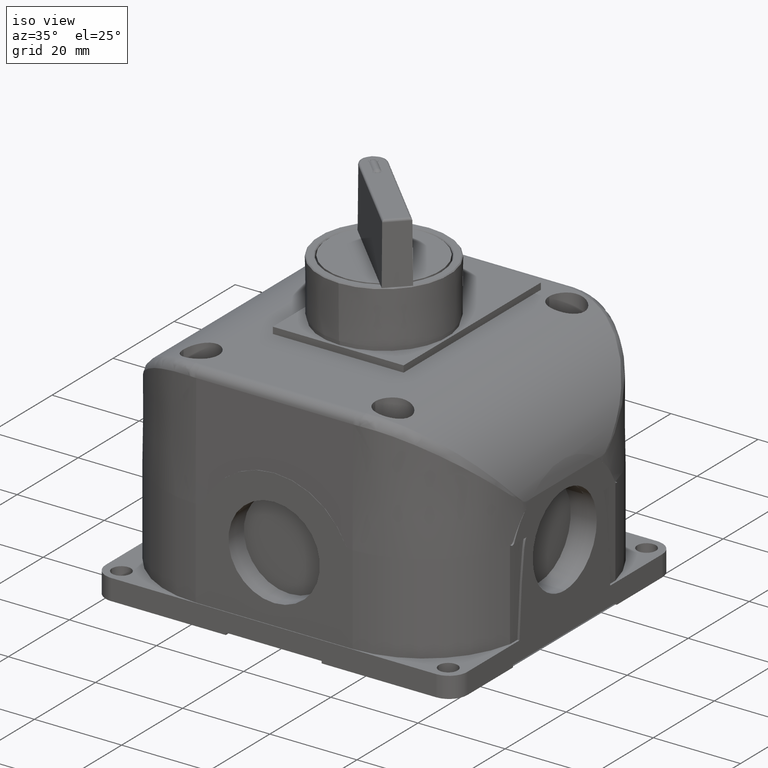
[diagram: clean part render]
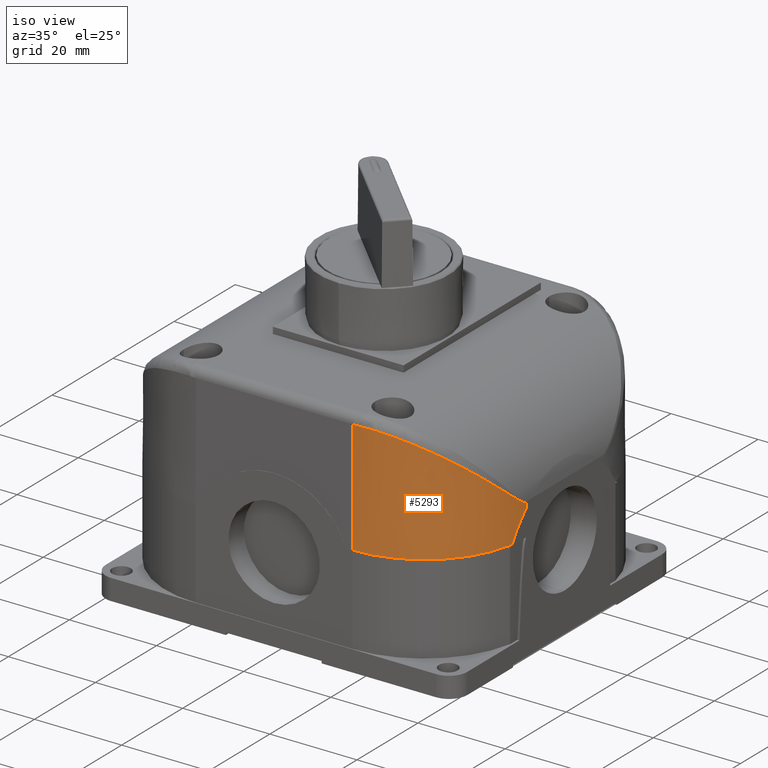
[diagram: same view with one face highlighted and labeled with its STEP entity id]
A machine part, iso view. The second image highlights one B-rep face of the part: STEP entity #5293.
In plain terms, the highlighted conical surface has half-angle 0.333 deg.
Its self-contained STEP definition (entity closure, byte-faithful):
#11 = CARTESIAN_POINT ( 'NONE',  ( 3.251961902474344246, -2.072541494253875793, 1.383728675915000039 ) ) ;
#140 = CARTESIAN_POINT ( 'NONE',  ( 3.264845582341468599, -1.960502420289710779, 1.298837505740052300 ) ) ;
#377 = CARTESIAN_POINT ( 'NONE',  ( 3.253134358200654219, -2.065867477270695751, 1.378151887914879081 ) ) ;
#1480 = CARTESIAN_POINT ( 'NONE',  ( 3.174183658568419553, -2.312868399034164746, 1.590303145043045596 ) ) ;
#1590 = CARTESIAN_POINT ( 'NONE',  ( 3.146347000840579611, -2.365768038744330504, 1.636327638782167915 ) ) ;
#1722 = CARTESIAN_POINT ( 'NONE',  ( 3.222054144217013860, -2.193050552978146772, 1.486532373420970332 ) ) ;
#1835 = VERTEX_POINT ( 'NONE', #7430 ) ;
#1844 = CARTESIAN_POINT ( 'NONE',  ( 3.160251175082602781, -2.340331928314225873, 1.614201815674437324 ) ) ;
#1864 = ORIENTED_EDGE ( 'NONE', *, *, #5090, .T. ) ;
#1968 = CARTESIAN_POINT ( 'NONE',  ( 3.056571687521079106, -2.496642731215419353, 1.749831433762775612 ) ) ;
#1982 = DIRECTION ( 'NONE',  ( -0.000000000000000000, 0.005817731354993830803, 0.9999830768577441242 ) ) ;
#2097 = AXIS2_PLACEMENT_3D ( 'NONE', #20578, #3474, #3586 ) ;
#2142 = CARTESIAN_POINT ( 'NONE',  ( 3.264755822591616230, -1.962178711587453606, 1.299814615752604041 ) ) ;
#2259 = CARTESIAN_POINT ( 'NONE',  ( 3.264793624561448837, -1.961478921280301213, 1.299404274888864119 ) ) ;
#2384 = CARTESIAN_POINT ( 'NONE',  ( 3.261607365404865622, -2.002993839400599274, 1.327750458814148882 ) ) ;
#2606 = ORIENTED_EDGE ( 'NONE', *, *, #14790, .T. ) ;
#2955 = CARTESIAN_POINT ( 'NONE',  ( 2.342519685039369914, -1.915243743866817727, 0.9960629921259748221 ) ) ;
#3257 = ORIENTED_EDGE ( 'NONE', *, *, #11601, .F. ) ;
#3349 = CARTESIAN_POINT ( 'NONE',  ( 3.117608986063511001, -2.413864074069858034, 1.678111759646784940 ) ) ;
#3413 = CARTESIAN_POINT ( 'NONE',  ( 3.253289026687199215, -2.077791507367909851, 1.005363294054596679 ) ) ;
#3462 = CARTESIAN_POINT ( 'NONE',  ( 3.055042315407412890, -2.498500340589556501, 1.751436922869791024 ) ) ;
#3474 = DIRECTION ( 'NONE',  ( -0.000000000000000000, -0.000000000000000000, 1.000000000000000000 ) ) ;
#3575 = CARTESIAN_POINT ( 'NONE',  ( 2.609924995580893636, -2.794864124826412777, 1.998039451550117640 ) ) ;
#3586 = DIRECTION ( 'NONE',  ( -1.000000000000000000, 5.349345254119941358E-15, 0.000000000000000000 ) ) ;
#3703 = CARTESIAN_POINT ( 'NONE',  ( 2.795691517251135849, -2.715596392503032419, 1.935342160712824722 ) ) ;
#3826 = CARTESIAN_POINT ( 'NONE',  ( 3.147405447140726231, -2.363894760440387266, 1.634699191942782681 ) ) ;
#3879 = EDGE_CURVE ( 'NONE', #6092, #5114, #14748, .T. ) ;
#3994 = CARTESIAN_POINT ( 'NONE',  ( 3.244568689044050380, -2.110346881056663904, 1.415602160038758273 ) ) ;
#4081 = AXIS2_PLACEMENT_3D ( 'NONE', #2955, #5286, #22292 ) ;
#4122 = CARTESIAN_POINT ( 'NONE',  ( 3.264019083107969621, -1.974617840971152116, 1.307484880536856631 ) ) ;
#4241 = CARTESIAN_POINT ( 'NONE',  ( 3.233933264573942257, -2.152878010790701957, 1.451986947161407970 ) ) ;
#4326 = AXIS2_PLACEMENT_3D ( 'NONE', #8222, #19387, #14044 ) ;
#4661 = EDGE_LOOP ( 'NONE', ( #3257, #17945, #12290, #8904, #12171, #2606, #1864 ) ) ;
#4832 = B_SPLINE_CURVE_WITH_KNOTS ( 'NONE', 3,
 ( #23337, #15742, #21480, #6198, #12019, #17856 ),
 .UNSPECIFIED., .F., .F.,
 ( 4, 2, 4 ),
 ( 4.046035655711835948E-17, 0.003433972836961788917, 0.006867945673923537935 ),
 .UNSPECIFIED. ) ;
#5090 = EDGE_CURVE ( 'NONE', #16378, #22262, #4832, .T. ) ;
#5114 = VERTEX_POINT ( 'NONE', #21350 ) ;
#5198 = CARTESIAN_POINT ( 'NONE',  ( 2.787635568009763976, -2.720067577058593589, 1.939011431790203410 ) ) ;
#5286 = DIRECTION ( 'NONE',  ( -0.000000000000000000, 0.000000000000000000, -1.000000000000000000 ) ) ;
#5293 = ADVANCED_FACE ( 'NONE', ( #23668 ), #17505, .T. ) ;
#5316 = CARTESIAN_POINT ( 'NONE',  ( 2.785714485688368658, -2.721120615781786878, 1.939874428860139721 ) ) ;
#5431 = CARTESIAN_POINT ( 'NONE',  ( 2.619373042444686384, -2.791964351308264369, 1.995911216446775605 ) ) ;
#5672 = CARTESIAN_POINT ( 'NONE',  ( 3.215639906376369428, -2.212251006846826407, 1.503069868489066430 ) ) ;
#5717 = CARTESIAN_POINT ( 'NONE',  ( 3.231007655441036519, -2.163627680980815704, 1.461242554782403724 ) ) ;
#5838 = CARTESIAN_POINT ( 'NONE',  ( 3.265458622248275322, -1.947228055310893158, 1.291854909826694930 ) ) ;
#6085 = CARTESIAN_POINT ( 'NONE',  ( 3.259372567508124874, -2.023846401796741912, 1.343849195409676733 ) ) ;
#6092 = VERTEX_POINT ( 'NONE', #15271 ) ;
#6198 = CARTESIAN_POINT ( 'NONE',  ( 3.264949513382854995, -1.977636444428012341, 1.171895647408259800 ) ) ;
#6924 = CARTESIAN_POINT ( 'NONE',  ( 3.254506877280687771, -2.070300332105031060, 1.017060367454066583 ) ) ;
#7060 = CARTESIAN_POINT ( 'NONE',  ( 2.904771154472836070, -2.644132271902381870, 1.875803798415420998 ) ) ;
#7169 = CARTESIAN_POINT ( 'NONE',  ( 2.833709138482455536, -2.693087154750542389, 1.916749193789208494 ) ) ;
#7296 = CARTESIAN_POINT ( 'NONE',  ( 2.473736834530883222, -2.827517678014287217, 2.020150094998688139 ) ) ;
#7357 = CARTESIAN_POINT ( 'NONE',  ( 3.254064512783888308, -2.073121675492866078, 1.010736029749645049 ) ) ;
#7414 = CARTESIAN_POINT ( 'NONE',  ( 2.972875818029443451, -2.588402198321694492, 1.828675188872759261 ) ) ;
#7430 = CARTESIAN_POINT ( 'NONE',  ( 3.266041010011432544, -1.915243743866817727, 1.284061348228408228 ) ) ;
#7528 = CARTESIAN_POINT ( 'NONE',  ( 3.058353223090892747, -2.494468159808601371, 1.747951719552718775 ) ) ;
#7575 = CARTESIAN_POINT ( 'NONE',  ( 3.239426143452663887, -2.131832061424168145, 1.433925982212237216 ) ) ;
#7702 = CARTESIAN_POINT ( 'NONE',  ( 3.265959725831438121, -1.929310092549568312, 1.285387911904712244 ) ) ;
#7819 = CARTESIAN_POINT ( 'NONE',  ( 3.264946124996191745, -1.958560736394001633, 1.297731172361572982 ) ) ;
#7938 = CARTESIAN_POINT ( 'NONE',  ( 3.261750902095127191, -2.001547502362176267, 1.326658389414225647 ) ) ;
#8222 = CARTESIAN_POINT ( 'NONE',  ( 2.342519685039369914, -1.915243743866817727, 0.9960629921259841479 ) ) ;
#8904 = ORIENTED_EDGE ( 'NONE', *, *, #3879, .F. ) ;
#9028 = CARTESIAN_POINT ( 'NONE',  ( 3.220025592751017296, -2.199302361857809363, 1.491911185121614691 ) ) ;
#9068 = VERTEX_POINT ( 'NONE', #9217 ) ;
#9140 = CARTESIAN_POINT ( 'NONE',  ( 2.612760039608676976, -2.794004430863817667, 1.997410889386411981 ) ) ;
#9217 = CARTESIAN_POINT ( 'NONE',  ( 2.407107141098121961, -2.832210844921541515, 2.020143128453149473 ) ) ;
#9273 = CARTESIAN_POINT ( 'NONE',  ( 3.201087900752364934, -2.252658790231843788, 1.537999238314398109 ) ) ;
#9395 = CARTESIAN_POINT ( 'NONE',  ( 3.148640073173581744, -2.361698614499722737, 1.632789817201734994 ) ) ;
#9440 = CARTESIAN_POINT ( 'NONE',  ( 3.265656043622548577, -1.941116110014222018, 1.289367602933624735 ) ) ;
#9507 = CARTESIAN_POINT ( 'NONE',  ( 3.055297345862068248, -2.498191105131964296, 1.751169671931636307 ) ) ;
#9555 = CARTESIAN_POINT ( 'NONE',  ( 3.264421502264981623, -1.968297937125591979, 1.303430315415760710 ) ) ;
#9675 = CARTESIAN_POINT ( 'NONE',  ( 3.248408756041329504, -2.091798354238329605, 1.399918675547938252 ) ) ;
#9717 = DIRECTION ( 'NONE',  ( 0.005817731354993830803, 0.000000000000000000, -0.9999830768577441242 ) ) ;
#9800 = CARTESIAN_POINT ( 'NONE',  ( 3.264770992230279223, -1.961898633874509690, 1.299650090765405830 ) ) ;
#9921 = CARTESIAN_POINT ( 'NONE',  ( 3.254047407313521934, -2.060364966457268743, 1.373587297193826329 ) ) ;
#10212 = EDGE_CURVE ( 'NONE', #6092, #15078, #24143, .T. ) ;
#10735 = VECTOR ( 'NONE', #1982, 39.37007874015748143 ) ;
#10879 = CARTESIAN_POINT ( 'NONE',  ( 2.726294904437972288, -2.751519325278450889, 1.964599297023482682 ) ) ;
#10998 = CARTESIAN_POINT ( 'NONE',  ( 2.632589655435880971, -2.787747348248430068, 1.992779759003544315 ) ) ;
#11105 = CARTESIAN_POINT ( 'NONE',  ( 2.407107141098121961, -2.832210844921541515, 2.020143128453149473 ) ) ;
#11235 = CARTESIAN_POINT ( 'NONE',  ( 2.790323169060384689, -2.718585909182032356, 1.937796392491193176 ) ) ;
#11357 = CARTESIAN_POINT ( 'NONE',  ( 3.168638985285749499, -2.324113093535493668, 1.600087941568895111 ) ) ;
#11398 = CARTESIAN_POINT ( 'NONE',  ( 3.261631473281445981, -2.002752187396453554, 1.327567684909297663 ) ) ;
#11517 = CARTESIAN_POINT ( 'NONE',  ( 3.236690121697225031, -2.142532577173255071, 1.443094499199190528 ) ) ;
#11601 = EDGE_CURVE ( 'NONE', #1835, #22262, #15903, .T. ) ;
#11645 = CARTESIAN_POINT ( 'NONE',  ( 3.234257700371601540, -2.151681107530444947, 1.450956737429639265 ) ) ;
#11764 = CARTESIAN_POINT ( 'NONE',  ( 3.227743092821041770, -2.174906927199259599, 1.470930684940588762 ) ) ;
#12019 = CARTESIAN_POINT ( 'NONE',  ( 3.266493148625757126, -1.948313249984847451, 1.206345321975260454 ) ) ;
#12171 = ORIENTED_EDGE ( 'NONE', *, *, #10212, .T. ) ;
#12290 = ORIENTED_EDGE ( 'NONE', *, *, #19812, .F. ) ;
#12732 = CARTESIAN_POINT ( 'NONE',  ( 2.755875020291362443, -2.737405770254558224, 1.953214109963745448 ) ) ;
#12762 = CIRCLE ( 'NONE', #2097, 0.9192389264477673905 ) ;
#12853 = CARTESIAN_POINT ( 'NONE',  ( 2.815527977501088408, -2.704117704639759534, 1.925881397245356785 ) ) ;
#12976 = CARTESIAN_POINT ( 'NONE',  ( 3.213315650289528147, -2.218896634261491752, 1.508805177937411424 ) ) ;
#13223 = CARTESIAN_POINT ( 'NONE',  ( 3.055679813268496581, -2.497727039398881743, 1.750768603574912374 ) ) ;
#13265 = CARTESIAN_POINT ( 'NONE',  ( 3.256756019311814132, -2.042903754083232215, 1.359234047906526355 ) ) ;
#13390 = CARTESIAN_POINT ( 'NONE',  ( 3.263245725264274810, -1.984814182891871948, 1.314473271292589507 ) ) ;
#13511 = CARTESIAN_POINT ( 'NONE',  ( 3.250805876406282380, -2.078889722851476218, 1.389057158069453513 ) ) ;
#13643 = CARTESIAN_POINT ( 'NONE',  ( 3.251033317486984764, -2.077657692324145433, 1.388021268484607162 ) ) ;
#14044 = DIRECTION ( 'NONE',  ( -1.000000000000000000, 0.000000000000000000, 0.000000000000000000 ) ) ;
#14613 = CARTESIAN_POINT ( 'NONE',  ( 3.015760321673094158, -2.546068477889075421, 1.792545095525178045 ) ) ;
#14732 = CARTESIAN_POINT ( 'NONE',  ( 2.786483014549351989, -2.720699773999618820, 1.939529575077598933 ) ) ;
#14748 = LINE ( 'NONE', #22462, #10735 ) ;
#14790 = EDGE_CURVE ( 'NONE', #15078, #16378, #21966, .T. ) ;
#14850 = CARTESIAN_POINT ( 'NONE',  ( 3.190543481568302919, -2.277806693302975916, 1.559822114099029156 ) ) ;
#14965 = CARTESIAN_POINT ( 'NONE',  ( 2.785399947190120518, -2.721292628900274568, 1.940015362373868957 ) ) ;
#15078 = VERTEX_POINT ( 'NONE', #15885 ) ;
#15080 = CARTESIAN_POINT ( 'NONE',  ( 3.074973820363037458, -2.473511062079797540, 1.729820231338190961 ) ) ;
#15128 = CARTESIAN_POINT ( 'NONE',  ( 3.234566237974493497, -2.150538765777670225, 1.449973777020748589 ) ) ;
#15251 = CARTESIAN_POINT ( 'NONE',  ( 3.265133965755139034, -1.954722676158958894, 1.295627325281184516 ) ) ;
#15271 = CARTESIAN_POINT ( 'NONE',  ( 2.342519685039370803, -2.840440594260518647, 0.9960629921259841479 ) ) ;
#15373 = CARTESIAN_POINT ( 'NONE',  ( 3.261590580494871272, -2.003161652817167404, 1.327877491846791713 ) ) ;
#15497 = CARTESIAN_POINT ( 'NONE',  ( 3.261914669213803464, -1.999872088225693956, 1.325399628986254630 ) ) ;
#15742 = CARTESIAN_POINT ( 'NONE',  ( 3.257433800525774359, -2.051632795257102071, 1.058905613107271604 ) ) ;
#15885 = CARTESIAN_POINT ( 'NONE',  ( 3.248535447071828397, -2.102659460729538576, 0.9960629921259841479 ) ) ;
#15903 = LINE ( 'NONE', #21278, #24385 ) ;
#16240 = EDGE_CURVE ( 'NONE', #1835, #9068, #21615, .T. ) ;
#16378 = VERTEX_POINT ( 'NONE', #6924 ) ;
#16421 = CARTESIAN_POINT ( 'NONE',  ( 3.254506877280687771, -2.070300332105031060, 1.017060367454066583 ) ) ;
#16593 = CARTESIAN_POINT ( 'NONE',  ( 2.845730371319954433, -2.685412178978454634, 1.910366619381830500 ) ) ;
#16654 = CARTESIAN_POINT ( 'NONE',  ( 3.251226682704898785, -2.089177753660218517, 0.9980359331173711546 ) ) ;
#16710 = CARTESIAN_POINT ( 'NONE',  ( 2.607167753092759277, -2.795694029435936478, 1.998644785001256308 ) ) ;
#16951 = CARTESIAN_POINT ( 'NONE',  ( 3.086867132527494118, -2.457805688626991003, 1.716218245953658350 ) ) ;
#16993 = CARTESIAN_POINT ( 'NONE',  ( 3.262816509468008608, -1.990091439708956411, 1.318194102438976945 ) ) ;
#17067 = CARTESIAN_POINT ( 'NONE',  ( 3.054939655531189846, -2.498624757599859691, 1.751544446258192611 ) ) ;
#17111 = CARTESIAN_POINT ( 'NONE',  ( 3.266041010011432544, -1.915243743866817727, 1.284061348228408228 ) ) ;
#17233 = CARTESIAN_POINT ( 'NONE',  ( 3.255761814073173888, -2.049653407151239559, 1.364745466790457940 ) ) ;
#17483 = CARTESIAN_POINT ( 'NONE',  ( 3.250897061059143667, -2.078396460852754313, 1.388642353249516681 ) ) ;
#17505 = CONICAL_SURFACE ( 'NONE', #4081, 0.9251968503937008093, 0.005817764173314379783 ) ;
#17856 = CARTESIAN_POINT ( 'NONE',  ( 3.266307467624131711, -1.915243743866817505, 1.238261175078292586 ) ) ;
#17945 = ORIENTED_EDGE ( 'NONE', *, *, #16240, .T. ) ;
#18460 = CARTESIAN_POINT ( 'NONE',  ( 2.681489321283199168, -2.770111325501869004, 1.979261323300723463 ) ) ;
#18575 = CARTESIAN_POINT ( 'NONE',  ( 2.643898656850473650, -2.783897049528603063, 1.989869175656847400 ) ) ;
#18693 = CARTESIAN_POINT ( 'NONE',  ( 3.212097941793802480, -2.222315603616606516, 1.511758541006988477 ) ) ;
#18820 = CARTESIAN_POINT ( 'NONE',  ( 3.146278986444909886, -2.365888144900926360, 1.636432040934433285 ) ) ;
#18942 = CARTESIAN_POINT ( 'NONE',  ( 3.146788039370794543, -2.364988522838579410, 1.635650028488323526 ) ) ;
#18989 = CARTESIAN_POINT ( 'NONE',  ( 3.251347625142546161, -2.075941775923852983, 1.386579927954785463 ) ) ;
#19114 = CARTESIAN_POINT ( 'NONE',  ( 3.260631999522329405, -2.012731450788535437, 1.335125165951701165 ) ) ;
#19235 = CARTESIAN_POINT ( 'NONE',  ( 3.234051520854270390, -2.152442534075330816, 1.451612064029316418 ) ) ;
#19387 = DIRECTION ( 'NONE',  ( 0.000000000000000000, -0.000000000000000000, 1.000000000000000000 ) ) ;
#19812 = EDGE_CURVE ( 'NONE', #5114, #9068, #12762, .T. ) ;
#20340 = CARTESIAN_POINT ( 'NONE',  ( 3.061907329009555312, -2.490095177297039442, 1.744170792789461855 ) ) ;
#20403 = CARTESIAN_POINT ( 'NONE',  ( 3.249940466085668334, -2.095867237570228525, 0.9960629921259841479 ) ) ;
#20452 = CARTESIAN_POINT ( 'NONE',  ( 2.666481300269646137, -2.775879350765678932, 1.983746039674409323 ) ) ;
#20566 = CARTESIAN_POINT ( 'NONE',  ( 2.806400055623517353, -2.709512525661005977, 1.930337084434701200 ) ) ;
#20578 = CARTESIAN_POINT ( 'NONE',  ( 2.342519685039369914, -1.915243743866817727, 2.020143128453149473 ) ) ;
#20819 = CARTESIAN_POINT ( 'NONE',  ( 3.151108365752101292, -2.357271771044335384, 1.628940261119775412 ) ) ;
#20864 = CARTESIAN_POINT ( 'NONE',  ( 3.266041010011431656, -1.921996706958469803, 1.284061348228408228 ) ) ;
#20984 = CARTESIAN_POINT ( 'NONE',  ( 3.262230458011752265, -1.996560058696551287, 1.322931684704676591 ) ) ;
#21107 = CARTESIAN_POINT ( 'NONE',  ( 3.235281035494463442, -2.147871894704465934, 1.447680409167720228 ) ) ;
#21231 = CARTESIAN_POINT ( 'NONE',  ( 3.261667527340986972, -2.002390055307377903, 1.327293966700006767 ) ) ;
#21278 = CARTESIAN_POINT ( 'NONE',  ( 3.267716535433071279, -1.915243743866817061, 0.9960629921259841479 ) ) ;
#21350 = CARTESIAN_POINT ( 'NONE',  ( 2.342519685039370803, -2.834482670314587338, 2.020143128453149917 ) ) ;
#21480 = CARTESIAN_POINT ( 'NONE',  ( 3.260427331450197919, -2.029296847840913021, 1.098175835445571291 ) ) ;
#21615 = B_SPLINE_CURVE_WITH_KNOTS ( 'NONE', 3,
 ( #17111, #20864, #7702, #9440, #5838, #15251, #7819, #140, #2259, #9800, #2142, #23106, #9555, #4122, #13390, #16993, #20984, #15497, #7938, #21231, #11398, #2384, #15373, #19114, #6085, #13265, #17233, #9921, #377, #11, #18989, #13643, #17483, #13511, #22858, #9675, #3994, #7575, #11517, #21107, #15128, #11645, #19235, #4241, #5717, #11764, #1722, #9028, #24414, #5672, #12976, #18693, #9273, #14850, #1480, #11357, #1844, #22328, #20819, #9395, #3826, #18942, #22690, #1590, #18820, #22205, #3349, #24178, #16951, #15080, #24534, #20340, #7528, #1968, #13223, #9507, #3462, #17067, #14613, #7414, #7060, #22448, #16593, #7169, #12853, #20566, #3703, #11235, #5198, #14732, #5316, #14965, #12732, #10879, #18460, #20452, #18575, #10998, #5431, #9140, #3575, #22564, #16710, #24297, #7296, #11105 ),
 .UNSPECIFIED., .F., .F.,
 ( 4, 2, 1, 1, 1, 1, 1, 2, 2, 2, 1, 1, 1, 1, 1, 2, 2, 2, 2, 1, 1, 1, 1, 2, 2, 1, 1, 1, 1, 1, 2, 2, 2, 2, 2, 2, 2, 2, 1, 1, 1, 1, 1, 2, 2, 2, 2, 1, 1, 1, 1, 1, 2, 2, 2, 2, 2, 1, 1, 1, 1, 2, 2, 2, 2, 1, 1, 1, 2, 2, 4 ),
 ( 0.000000000000000000, 0.01562500000001528985, 0.02343750000002293304, 0.02734375000002654821, 0.02929687500002804701, 0.03027343750002873743, 0.03076171875002918152, 0.03100585937502949724, 0.03125000000002980949, 0.04687500000005997286, 0.05468750000007528700, 0.05859375000008276019, 0.06054687500008636147, 0.06152343750008812395, 0.06201171875008879703, 0.06225585937508892886, 0.06250000000008905376, 0.09375000000010581813, 0.1093750000001140199, 0.1171875000001181832, 0.1210937500001201955, 0.1230468750001213474, 0.1240234375001217360, 0.1245117187501220690, 0.1250000000001224021, 0.1562500000001452172, 0.1718750000001564304, 0.1796875000001623979, 0.1835937500001649236, 0.1855468750001663947, 0.1865234375001673661, 0.1875000000001683376, 0.2187500000001909584, 0.2343750000002024214, 0.2421875000002084999, 0.2500000000002145506, 0.3125000000002618461, 0.3437500000002858269, 0.3593750000002979839, 0.3671875000003038680, 0.3710937500003064216, 0.3730468750003074763, 0.3740234375003077538, 0.3745117187503077538, 0.3750000000003076983, 0.4375000000002601253, 0.4687500000002359224, 0.4843750000002234879, 0.4921875000002174372, 0.4960937500002144396, 0.4980468750002128853, 0.4990234375002115530, 0.4995117187502108869, 0.5000000000002102762, 0.6250000000001599831, 0.6875000000001348921, 0.7187500000001224576, 0.7343750000001162404, 0.7421875000001134648, 0.7460937500001115774, 0.7480468750001112443, 0.7490234375001109113, 0.7500000000001104672, 0.8125000000000761613, 0.8437500000000588418, 0.8593750000000496270, 0.8671875000000452971, 0.8710937500000437428, 0.8730468750000429656, 0.8750000000000421885, 1.000000000000000000 ),
 .UNSPECIFIED. ) ;
#21966 = B_SPLINE_CURVE_WITH_KNOTS ( 'NONE', 3,
 ( #22154, #20403, #16654, #3413, #7357, #16421 ),
 .UNSPECIFIED., .F., .F.,
 ( 4, 2, 4 ),
 ( 0.000000000000000000, 0.0005211201390492762415, 0.001042240278098552483 ),
 .UNSPECIFIED. ) ;
#22154 = CARTESIAN_POINT ( 'NONE',  ( 3.248535447071828397, -2.102659460729538576, 0.9960629921259841479 ) ) ;
#22205 = CARTESIAN_POINT ( 'NONE',  ( 3.132294294612508523, -2.390561953124755057, 1.657879178812412757 ) ) ;
#22262 = VERTEX_POINT ( 'NONE', #23973 ) ;
#22292 = DIRECTION ( 'NONE',  ( -1.000000000000000000, 0.000000000000000000, 0.000000000000000000 ) ) ;
#22328 = CARTESIAN_POINT ( 'NONE',  ( 3.156039487373379249, -2.348279348423537360, 1.621117922556399860 ) ) ;
#22448 = CARTESIAN_POINT ( 'NONE',  ( 2.881438777701201381, -2.661419292926768154, 1.890335579849855563 ) ) ;
#22462 = CARTESIAN_POINT ( 'NONE',  ( 2.342519685039371247, -2.840440594260518647, 0.9960629921259841479 ) ) ;
#22564 = CARTESIAN_POINT ( 'NONE',  ( 2.608034778001325993, -2.795434008011839389, 1.998455347479160871 ) ) ;
#22690 = CARTESIAN_POINT ( 'NONE',  ( 3.146523418423013307, -2.365456355360556984, 1.636056704688201302 ) ) ;
#22858 = CARTESIAN_POINT ( 'NONE',  ( 3.250750192352466428, -2.079190136473487271, 1.389309873007610330 ) ) ;
#23106 = CARTESIAN_POINT ( 'NONE',  ( 3.264745515458844949, -1.962367962875310123, 1.299926202921061202 ) ) ;
#23337 = CARTESIAN_POINT ( 'NONE',  ( 3.254506877280687771, -2.070300332105031060, 1.017060367454066583 ) ) ;
#23668 = FACE_OUTER_BOUND ( 'NONE', #4661, .T. ) ;
#23973 = CARTESIAN_POINT ( 'NONE',  ( 3.266307467624131711, -1.915243743866817505, 1.238261175078292586 ) ) ;
#24143 = CIRCLE ( 'NONE', #4326, 0.9251968503937008093 ) ;
#24178 = CARTESIAN_POINT ( 'NONE',  ( 3.094667011665341860, -2.447041891612226294, 1.706888180657096354 ) ) ;
#24297 = CARTESIAN_POINT ( 'NONE',  ( 2.540642258958520916, -2.815518679672662561, 2.013057893893658523 ) ) ;
#24385 = VECTOR ( 'NONE', #9717, 39.37007874015748143 ) ;
#24414 = CARTESIAN_POINT ( 'NONE',  ( 3.216763718152237495, -2.208976769626887382, 1.500246775983356873 ) ) ;
#24534 = CARTESIAN_POINT ( 'NONE',  ( 3.068978767972045496, -2.481253702283080731, 1.736522945890378145 ) ) ;